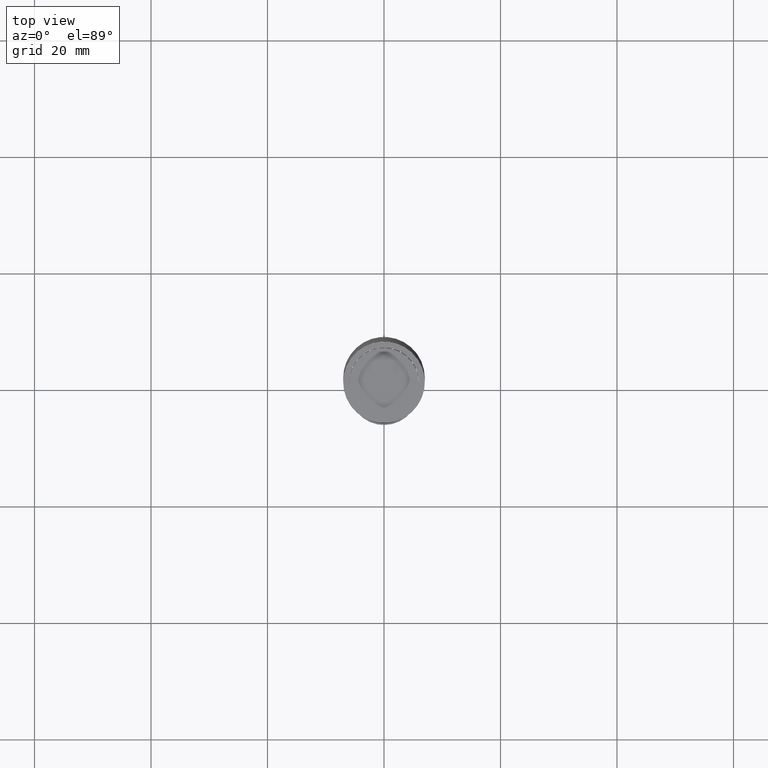
[diagram: clean part render]
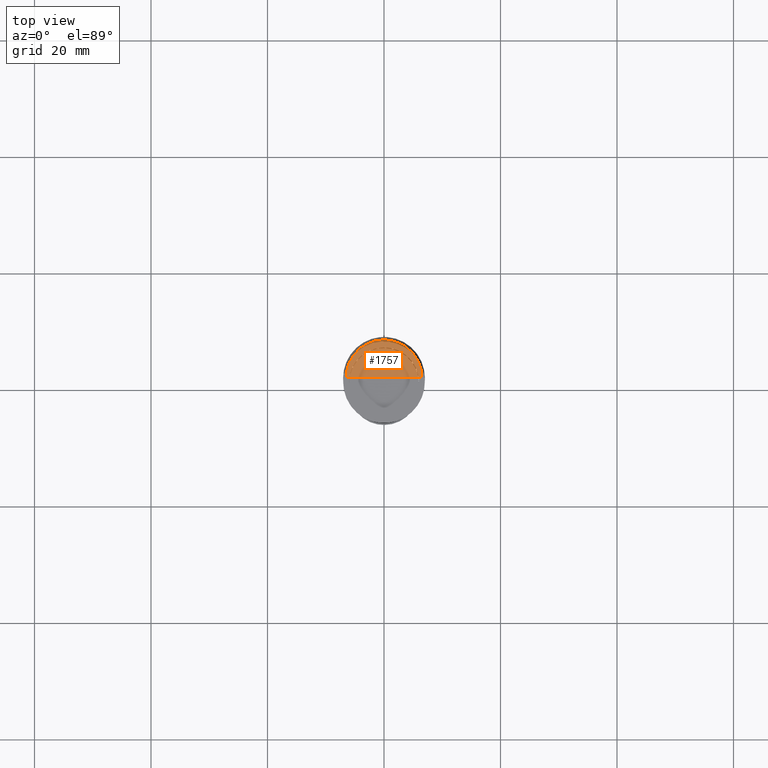
[diagram: same view with one face highlighted and labeled with its STEP entity id]
A machine part, top view. The second image highlights one B-rep face of the part: STEP entity #1757.
In plain terms, the highlighted face is a freeform B-spline surface patch.
Its self-contained STEP definition (entity closure, byte-faithful):
#1492=CARTESIAN_POINT('',(6.5,0.0,45.0));
#1493=CARTESIAN_POINT('',(6.5,6.5,45.0));
#1494=CARTESIAN_POINT('',(0.0,6.5,45.0));
#1495=CARTESIAN_POINT('',(-6.5,6.5,45.0));
#1496=CARTESIAN_POINT('',(-6.5,0.0,45.0));
#1497=CARTESIAN_POINT('',(0.0,0.0,45.0));
#1742=(
BOUNDED_SURFACE()
B_SPLINE_SURFACE(1,2,(
(#1492,#1493,#1494,#1495,#1496),
(#1497,#1497,#1497,#1497,#1497)
), .UNSPECIFIED.,.F.,.F.,.F.)
B_SPLINE_SURFACE_WITH_KNOTS((2,2),(3,2,3),(
0.0,1.0),(
0.0,0.5,1.0), .UNSPECIFIED.)
GEOMETRIC_REPRESENTATION_ITEM()
RATIONAL_B_SPLINE_SURFACE(((1.0,0.707106781187,1.0,0.707106781187,1.0),
(1.0,0.707106781187,1.0,0.707106781187,1.0)
))
REPRESENTATION_ITEM('')
SURFACE()
);
#1743=(
BOUNDED_CURVE()
B_SPLINE_CURVE(2,(#1496,#1495,#1494,#1493,#1492),.UNSPECIFIED.,.F.,.F.)
B_SPLINE_CURVE_WITH_KNOTS((3,2,3),
(0.0,0.5,1.0),.UNSPECIFIED.)
CURVE()
GEOMETRIC_REPRESENTATION_ITEM()
RATIONAL_B_SPLINE_CURVE((1.0,0.707106781187,1.0,0.707106781187,1.0))
REPRESENTATION_ITEM('')
);
#1744=(
BOUNDED_CURVE()
B_SPLINE_CURVE(1,(#1492,#1497),.UNSPECIFIED.,.F.,.F.)
B_SPLINE_CURVE_WITH_KNOTS((2,2),
(0.0,1.0),.UNSPECIFIED.)
CURVE()
GEOMETRIC_REPRESENTATION_ITEM()
RATIONAL_B_SPLINE_CURVE((1.0,1.0))
REPRESENTATION_ITEM('')
);
#1745=(
BOUNDED_CURVE()
B_SPLINE_CURVE(1,(#1497,#1496),.UNSPECIFIED.,.F.,.F.)
B_SPLINE_CURVE_WITH_KNOTS((2,2),
(0.0,1.0),.UNSPECIFIED.)
CURVE()
GEOMETRIC_REPRESENTATION_ITEM()
RATIONAL_B_SPLINE_CURVE((1.0,1.0))
REPRESENTATION_ITEM('')
);
#1746=VERTEX_POINT('',#1492);
#1747=VERTEX_POINT('',#1496);
#1748=VERTEX_POINT('',#1497);
#1749=EDGE_CURVE('',#1747,#1746,#1743,.T.);
#1750=EDGE_CURVE('',#1746,#1748,#1744,.T.);
#1751=EDGE_CURVE('',#1748,#1747,#1745,.T.);
#1752=ORIENTED_EDGE('',*,*,#1749,.T.);
#1753=ORIENTED_EDGE('',*,*,#1750,.T.);
#1754=ORIENTED_EDGE('',*,*,#1751,.T.);
#1755=EDGE_LOOP('',(#1752,#1753,#1754));
#1756=FACE_OUTER_BOUND('',#1755,.T.);
#1757=ADVANCED_FACE('',(#1756),#1742,.T.);